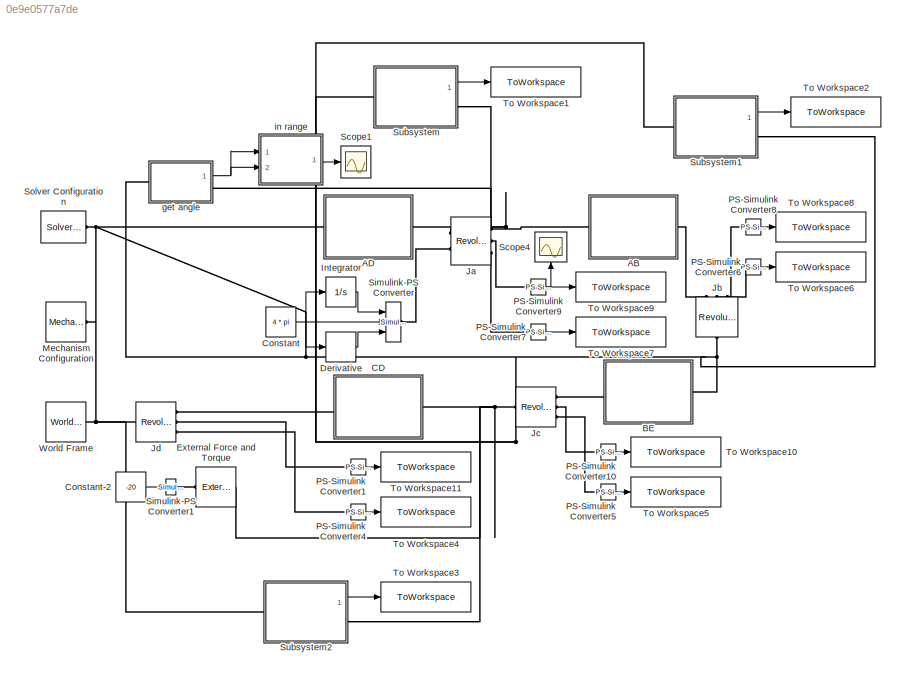
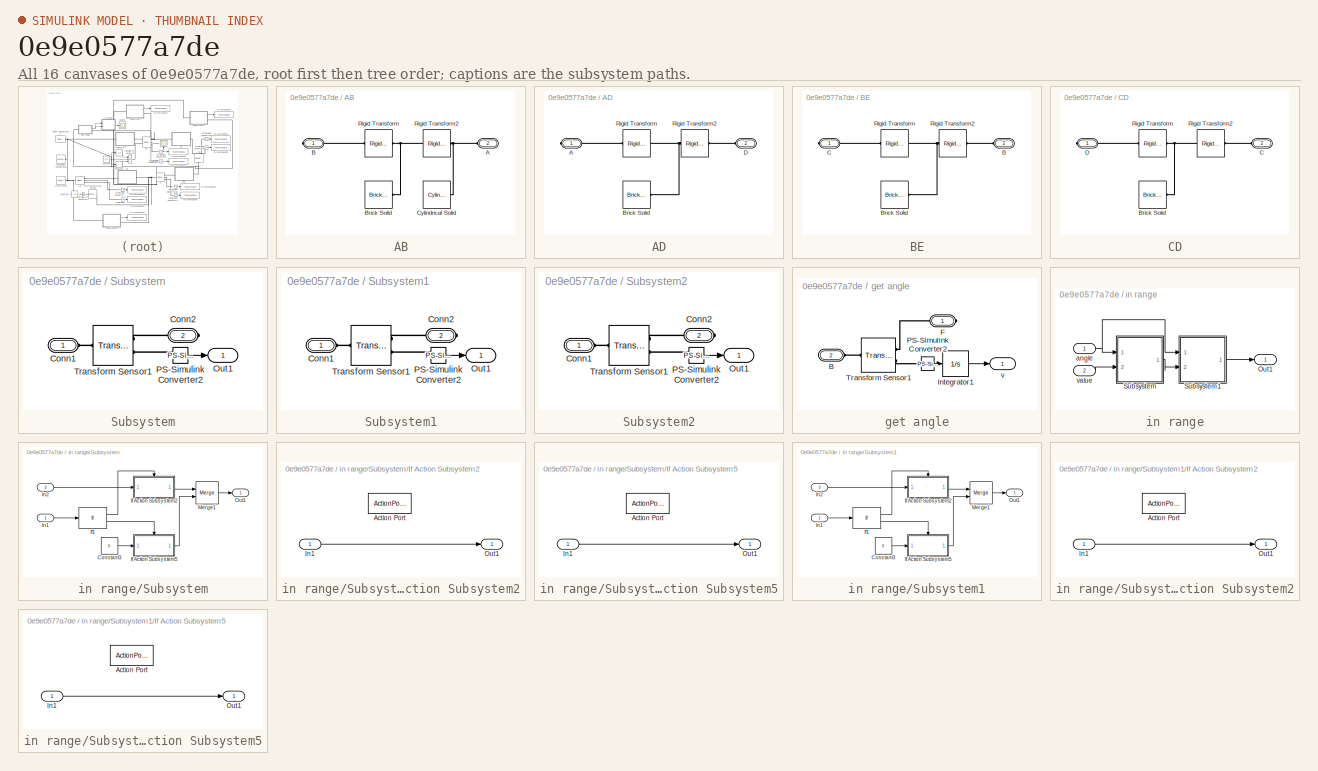
[diagram: thumbnail index - all 16 canvases of the model, root first then tree order]
MODEL slx_0e9e0577a7de
KIND model
CONFIG AbsTol = auto
CONFIG EnableMultiTasking = off
CONFIG FixedStep = auto
CONFIG MaxStep = 1e-3
CONFIG MinStep = auto
CONFIG RelTol = 1e-3
CONFIG SampleTimeConstraint = Unconstrained
CONFIG Solver = VariableStepAuto
CONFIG SolverName = VariableStepAuto
CONFIG StartTime = 0.0
CONFIG StopTime = 0.5
BLOCK [SubSystem] AB
  Ports = [0, 0, 0, 0, 0, 1, 1]
  RequestExecContextInheritance = off
BLOCK [PMIOPort] AB/A
  Port = 2
  Side = Left
BLOCK [PMIOPort] AB/B
  Side = Right
BLOCK [Reference] AB/Brick Solid  REF=sm_lib/Body Elements/Brick Solid
  Ports = [0, 0, 0, 0, 0, 0, 1]
  SourceBlock = sm_lib/Body Elements/Brick Solid
  SourceProductBaseCode = MS
  SourceProductName = Simscape Multibody
  SourceType = Brick Solid
BLOCK [Reference] AB/Cylindrical Solid  REF=sm_lib/Body Elements/Cylindrical Solid
  Commented = on
  Ports = [0, 0, 0, 0, 0, 0, 1]
  SourceBlock = sm_lib/Body Elements/Cylindrical Solid
  SourceProductBaseCode = MS
  SourceProductName = Simscape Multibody
  SourceType = Cylindrical Solid
BLOCK [Reference] AB/Rigid Transform  REF=sm_lib/Frames and
Transforms/Rigid
Transform
  Ports = [0, 0, 0, 0, 0, 1, 1]
  SourceBlock = sm_lib/Frames and\nTransforms/Rigid\nTransform
  SourceProductBaseCode = MS
  SourceProductName = Simscape Multibody
  SourceType = Rigid\nTransform
BLOCK [Reference] AB/Rigid Transform2  REF=sm_lib/Frames and
Transforms/Rigid
Transform
  Ports = [0, 0, 0, 0, 0, 1, 1]
  SourceBlock = sm_lib/Frames and\nTransforms/Rigid\nTransform
  SourceProductBaseCode = MS
  SourceProductName = Simscape Multibody
  SourceType = Rigid\nTransform
BLOCK [SubSystem] AD
  Ports = [0, 0, 0, 0, 0, 1, 1]
  RequestExecContextInheritance = off
BLOCK [PMIOPort] AD/A
  Side = Right
BLOCK [Reference] AD/Brick Solid  REF=sm_lib/Body Elements/Brick Solid
  Ports = [0, 0, 0, 0, 0, 0, 1]
  SourceBlock = sm_lib/Body Elements/Brick Solid
  SourceProductBaseCode = MS
  SourceProductName = Simscape Multibody
  SourceType = Brick Solid
BLOCK [PMIOPort] AD/D
  Port = 2
  Side = Left
BLOCK [Reference] AD/Rigid Transform  REF=sm_lib/Frames and
Transforms/Rigid
Transform
  Ports = [0, 0, 0, 0, 0, 1, 1]
  SourceBlock = sm_lib/Frames and\nTransforms/Rigid\nTransform
  SourceProductBaseCode = MS
  SourceProductName = Simscape Multibody
  SourceType = Rigid\nTransform
BLOCK [Reference] AD/Rigid Transform2  REF=sm_lib/Frames and
Transforms/Rigid
Transform
  Ports = [0, 0, 0, 0, 0, 1, 1]
  SourceBlock = sm_lib/Frames and\nTransforms/Rigid\nTransform
  SourceProductBaseCode = MS
  SourceProductName = Simscape Multibody
  SourceType = Rigid\nTransform
BLOCK [SubSystem] BE
  Ports = [0, 0, 0, 0, 0, 1, 1]
  RequestExecContextInheritance = off
BLOCK [PMIOPort] BE/B
  Port = 2
  Side = Left
BLOCK [Reference] BE/Brick Solid  REF=sm_lib/Body Elements/Brick Solid
  Ports = [0, 0, 0, 0, 0, 0, 1]
  SourceBlock = sm_lib/Body Elements/Brick Solid
  SourceProductBaseCode = MS
  SourceProductName = Simscape Multibody
  SourceType = Brick Solid
BLOCK [PMIOPort] BE/C
  Side = Right
BLOCK [Reference] BE/Rigid Transform  REF=sm_lib/Frames and
Transforms/Rigid
Transform
  Ports = [0, 0, 0, 0, 0, 1, 1]
  SourceBlock = sm_lib/Frames and\nTransforms/Rigid\nTransform
  SourceProductBaseCode = MS
  SourceProductName = Simscape Multibody
  SourceType = Rigid\nTransform
BLOCK [Reference] BE/Rigid Transform2  REF=sm_lib/Frames and
Transforms/Rigid
Transform
  Ports = [0, 0, 0, 0, 0, 1, 1]
  SourceBlock = sm_lib/Frames and\nTransforms/Rigid\nTransform
  SourceProductBaseCode = MS
  SourceProductName = Simscape Multibody
  SourceType = Rigid\nTransform
BLOCK [SubSystem] CD
  Ports = [0, 0, 0, 0, 0, 1, 1]
  RequestExecContextInheritance = off
BLOCK [Reference] CD/Brick Solid  REF=sm_lib/Body Elements/Brick Solid
  Ports = [0, 0, 0, 0, 0, 0, 1]
  SourceBlock = sm_lib/Body Elements/Brick Solid
  SourceProductBaseCode = MS
  SourceProductName = Simscape Multibody
  SourceType = Brick Solid
BLOCK [PMIOPort] CD/C
  Port = 2
  Side = Left
BLOCK [PMIOPort] CD/D
  Side = Right
BLOCK [Reference] CD/Rigid Transform  REF=sm_lib/Frames and
Transforms/Rigid
Transform
  Ports = [0, 0, 0, 0, 0, 1, 1]
  SourceBlock = sm_lib/Frames and\nTransforms/Rigid\nTransform
  SourceProductBaseCode = MS
  SourceProductName = Simscape Multibody
  SourceType = Rigid\nTransform
BLOCK [Reference] CD/Rigid Transform2  REF=sm_lib/Frames and
Transforms/Rigid
Transform
  Ports = [0, 0, 0, 0, 0, 1, 1]
  SourceBlock = sm_lib/Frames and\nTransforms/Rigid\nTransform
  SourceProductBaseCode = MS
  SourceProductName = Simscape Multibody
  SourceType = Rigid\nTransform
BLOCK [Constant] Constant
  Value = 4 * pi
BLOCK [Constant] Constant-2
  Value = -20
BLOCK [Derivative] Derivative
BLOCK [Reference] External Force and Torque  REF=sm_lib/Forces and
Torques/External Force
and Torque
  Ports = [0, 0, 0, 0, 0, 1, 1]
  SourceBlock = sm_lib/Forces and\nTorques/External Force\nand Torque
  SourceProductBaseCode = MS
  SourceProductName = Simscape Multibody
  SourceType = External Force\nand Torque
BLOCK [Integrator] Integrator
  Ports = [1, 1]
BLOCK [Reference] Ja  REF=sm_lib/Joints/Revolute Joint
  Ports = [0, 0, 0, 0, 0, 2, 3]
  SourceBlock = sm_lib/Joints/Revolute Joint
  SourceProductBaseCode = MS
  SourceProductName = Simscape Multibody
  SourceType = Revolute Joint
BLOCK [Reference] Jb  REF=sm_lib/Joints/Revolute Joint
  Ports = [0, 0, 0, 0, 0, 1, 3]
  SourceBlock = sm_lib/Joints/Revolute Joint
  SourceProductBaseCode = MS
  SourceProductName = Simscape Multibody
  SourceType = Revolute Joint
BLOCK [Reference] Jc  REF=sm_lib/Joints/Revolute Joint
  Ports = [0, 0, 0, 0, 0, 1, 3]
  SourceBlock = sm_lib/Joints/Revolute Joint
  SourceProductBaseCode = MS
  SourceProductName = Simscape Multibody
  SourceType = Revolute Joint
BLOCK [Reference] Jd  REF=sm_lib/Joints/Revolute Joint
  Ports = [0, 0, 0, 0, 0, 1, 3]
  SourceBlock = sm_lib/Joints/Revolute Joint
  SourceProductBaseCode = MS
  SourceProductName = Simscape Multibody
  SourceType = Revolute Joint
BLOCK [Reference] Mechanism Configuration  REF=sm_lib/Utilities/Mechanism
Configuration
  Ports = [0, 0, 0, 0, 0, 0, 1]
  SourceBlock = sm_lib/Utilities/Mechanism\nConfiguration
  SourceProductBaseCode = MS
  SourceProductName = Simscape Multibody
  SourceType = Mechanism\nConfiguration
BLOCK [Reference] PS-Simulink Converter1  REF=nesl_utility/PS-Simulink
Converter
  Ports = [0, 1, 0, 0, 0, 1]
  SourceBlock = nesl_utility/PS-Simulink\nConverter
  SourceProductBaseCode = SS
  SourceProductName = Simscape
  SourceType = PS-Simulink\nConverter
BLOCK [Reference] PS-Simulink Converter10  REF=nesl_utility/PS-Simulink
Converter
  Ports = [0, 1, 0, 0, 0, 1]
  SourceBlock = nesl_utility/PS-Simulink\nConverter
  SourceProductBaseCode = SS
  SourceProductName = Simscape
  SourceType = PS-Simulink\nConverter
BLOCK [Reference] PS-Simulink Converter4  REF=nesl_utility/PS-Simulink
Converter
  Ports = [0, 1, 0, 0, 0, 1]
  SourceBlock = nesl_utility/PS-Simulink\nConverter
  SourceProductBaseCode = SS
  SourceProductName = Simscape
  SourceType = PS-Simulink\nConverter
BLOCK [Reference] PS-Simulink Converter5  REF=nesl_utility/PS-Simulink
Converter
  Ports = [0, 1, 0, 0, 0, 1]
  SourceBlock = nesl_utility/PS-Simulink\nConverter
  SourceProductBaseCode = SS
  SourceProductName = Simscape
  SourceType = PS-Simulink\nConverter
BLOCK [Reference] PS-Simulink Converter6  REF=nesl_utility/PS-Simulink
Converter
  Ports = [0, 1, 0, 0, 0, 1]
  SourceBlock = nesl_utility/PS-Simulink\nConverter
  SourceProductBaseCode = SS
  SourceProductName = Simscape
  SourceType = PS-Simulink\nConverter
BLOCK [Reference] PS-Simulink Converter7  REF=nesl_utility/PS-Simulink
Converter
  Ports = [0, 1, 0, 0, 0, 1]
  SourceBlock = nesl_utility/PS-Simulink\nConverter
  SourceProductBaseCode = SS
  SourceProductName = Simscape
  SourceType = PS-Simulink\nConverter
BLOCK [Reference] PS-Simulink Converter8  REF=nesl_utility/PS-Simulink
Converter
  Ports = [0, 1, 0, 0, 0, 1]
  SourceBlock = nesl_utility/PS-Simulink\nConverter
  SourceProductBaseCode = SS
  SourceProductName = Simscape
  SourceType = PS-Simulink\nConverter
BLOCK [Reference] PS-Simulink Converter9  REF=nesl_utility/PS-Simulink
Converter
  Ports = [0, 1, 0, 0, 0, 1]
  SourceBlock = nesl_utility/PS-Simulink\nConverter
  SourceProductBaseCode = SS
  SourceProductName = Simscape
  SourceType = PS-Simulink\nConverter
BLOCK [Scope] Scope1
  Floating = off
  NumInputPorts = 1
  Ports = [1]
  ScopeSpecificationString = Simulink.scopes.TimeScopeBlockCfg('CurrentConfiguration', extmgr.ConfigurationSet(extmgr.Configuration('Core','General UI',true),extmgr.Configuration('Core','Source UI',true),extmgr.Configuration('Sources','WiredSimulink',true,'DataLoggingVariableName','ScopeData1'),extmgr.Configuration('Visuals','Time Domain',true,'SerializedDisplays',{struct('MinYLimReal','-0.5236','MaxYLimReal','4.7124','YLabel...<+1390ch>
BLOCK [Scope] Scope4
  Floating = off
  NumInputPorts = 1
  Ports = [1]
  ScopeSpecificationString = Simulink.scopes.TimeScopeBlockCfg('CurrentConfiguration', extmgr.ConfigurationSet(extmgr.Configuration('Core','General UI',true),extmgr.Configuration('Core','Source UI',true),extmgr.Configuration('Sources','WiredSimulink',true,'DataLoggingVariableName','ScopeData3'),extmgr.Configuration('Visuals','Time Domain',true,'SerializedDisplays',{struct('MinYLimReal','-4534458.02869','MaxYLimReal','2640845....<+1457ch>
BLOCK [Reference] Simulink-PS Converter  REF=nesl_utility/Simulink-PS
Converter
  Ports = [3, 0, 0, 0, 0, 0, 1]
  SourceBlock = nesl_utility/Simulink-PS\nConverter
  SourceProductBaseCode = SS
  SourceProductName = Simscape
  SourceType = Simulink-PS\nConverter
BLOCK [Reference] Simulink-PS Converter1  REF=nesl_utility/Simulink-PS
Converter
  Ports = [1, 0, 0, 0, 0, 0, 1]
  SourceBlock = nesl_utility/Simulink-PS\nConverter
  SourceProductBaseCode = SS
  SourceProductName = Simscape
  SourceType = Simulink-PS\nConverter
BLOCK [Reference] Solver Configuration  REF=nesl_utility/Solver
Configuration
  Ports = [0, 0, 0, 0, 0, 0, 1]
  SourceBlock = nesl_utility/Solver\nConfiguration
  SourceProductBaseCode = SS
  SourceProductName = Simscape
  SourceType = Solver\nConfiguration
BLOCK [SubSystem] Subsystem
  Ports = [0, 1, 0, 0, 0, 1, 1]
  RequestExecContextInheritance = off
BLOCK [PMIOPort] Subsystem/Conn1
  Side = Left
BLOCK [PMIOPort] Subsystem/Conn2
  Port = 2
  Side = Right
BLOCK [Outport] Subsystem/Out1
  IconDisplay = Port number
BLOCK [Reference] Subsystem/PS-Simulink Converter2  REF=nesl_utility/PS-Simulink
Converter
  Ports = [0, 1, 0, 0, 0, 1]
  SourceBlock = nesl_utility/PS-Simulink\nConverter
  SourceProductBaseCode = SS
  SourceProductName = Simscape
  SourceType = PS-Simulink\nConverter
BLOCK [Reference] Subsystem/Transform Sensor1  REF=sm_lib/Frames and
Transforms/Transform
Sensor
  Ports = [0, 0, 0, 0, 0, 1, 2]
  SourceBlock = sm_lib/Frames and\nTransforms/Transform\nSensor
  SourceProductBaseCode = MS
  SourceProductName = Simscape Multibody
  SourceType = Transform\nSensor
BLOCK [SubSystem] Subsystem1
  Ports = [0, 1, 0, 0, 0, 1, 1]
  RequestExecContextInheritance = off
BLOCK [PMIOPort] Subsystem1/Conn1
  Side = Left
BLOCK [PMIOPort] Subsystem1/Conn2
  Port = 2
  Side = Right
BLOCK [Outport] Subsystem1/Out1
  IconDisplay = Port number
BLOCK [Reference] Subsystem1/PS-Simulink Converter2  REF=nesl_utility/PS-Simulink
Converter
  Ports = [0, 1, 0, 0, 0, 1]
  SourceBlock = nesl_utility/PS-Simulink\nConverter
  SourceProductBaseCode = SS
  SourceProductName = Simscape
  SourceType = PS-Simulink\nConverter
BLOCK [Reference] Subsystem1/Transform Sensor1  REF=sm_lib/Frames and
Transforms/Transform
Sensor
  Ports = [0, 0, 0, 0, 0, 1, 2]
  SourceBlock = sm_lib/Frames and\nTransforms/Transform\nSensor
  SourceProductBaseCode = MS
  SourceProductName = Simscape Multibody
  SourceType = Transform\nSensor
BLOCK [SubSystem] Subsystem2
  Ports = [0, 1, 0, 0, 0, 1, 1]
  RequestExecContextInheritance = off
BLOCK [PMIOPort] Subsystem2/Conn1
  Side = Left
BLOCK [PMIOPort] Subsystem2/Conn2
  Port = 2
  Side = Right
BLOCK [Outport] Subsystem2/Out1
  IconDisplay = Port number
BLOCK [Reference] Subsystem2/PS-Simulink Converter2  REF=nesl_utility/PS-Simulink
Converter
  Ports = [0, 1, 0, 0, 0, 1]
  SourceBlock = nesl_utility/PS-Simulink\nConverter
  SourceProductBaseCode = SS
  SourceProductName = Simscape
  SourceType = PS-Simulink\nConverter
BLOCK [Reference] Subsystem2/Transform Sensor1  REF=sm_lib/Frames and
Transforms/Transform
Sensor
  Ports = [0, 0, 0, 0, 0, 1, 2]
  SourceBlock = sm_lib/Frames and\nTransforms/Transform\nSensor
  SourceProductBaseCode = MS
  SourceProductName = Simscape Multibody
  SourceType = Transform\nSensor
BLOCK [ToWorkspace] To Workspace1
  FixptAsFi = on
  MaxDataPoints = inf
  Ports = [1]
  SampleTime = -1
  SaveFormat = Timeseries
  VariableName = l2_w
BLOCK [ToWorkspace] To Workspace10
  FixptAsFi = on
  MaxDataPoints = inf
  Ports = [1]
  SampleTime = -1
  SaveFormat = Timeseries
  VariableName = Jc_t
BLOCK [ToWorkspace] To Workspace11
  FixptAsFi = on
  MaxDataPoints = inf
  Ports = [1]
  SampleTime = -1
  SaveFormat = Timeseries
  VariableName = Jd_t
BLOCK [ToWorkspace] To Workspace2
  FixptAsFi = on
  MaxDataPoints = inf
  Ports = [1]
  SampleTime = -1
  SaveFormat = Timeseries
  VariableName = l3_w
BLOCK [ToWorkspace] To Workspace3
  FixptAsFi = on
  MaxDataPoints = inf
  Ports = [1]
  SampleTime = -1
  SaveFormat = Timeseries
  VariableName = l4_w
BLOCK [ToWorkspace] To Workspace4
  FixptAsFi = on
  MaxDataPoints = inf
  Ports = [1]
  SampleTime = -1
  SaveFormat = Timeseries
  VariableName = Jd_f
BLOCK [ToWorkspace] To Workspace5
  FixptAsFi = on
  MaxDataPoints = inf
  Ports = [1]
  SampleTime = -1
  SaveFormat = Timeseries
  VariableName = Jc_f
BLOCK [ToWorkspace] To Workspace6
  FixptAsFi = on
  MaxDataPoints = inf
  Ports = [1]
  SampleTime = -1
  SaveFormat = Timeseries
  VariableName = Jb_f
BLOCK [ToWorkspace] To Workspace7
  FixptAsFi = on
  MaxDataPoints = inf
  Ports = [1]
  SampleTime = -1
  SaveFormat = Timeseries
  VariableName = Ja_f
BLOCK [ToWorkspace] To Workspace8
  FixptAsFi = on
  MaxDataPoints = inf
  Ports = [1]
  SampleTime = -1
  SaveFormat = Timeseries
  VariableName = Jb_t
BLOCK [ToWorkspace] To Workspace9
  FixptAsFi = on
  MaxDataPoints = inf
  Ports = [1]
  SampleTime = -1
  SaveFormat = Timeseries
  VariableName = Ja_t
BLOCK [Reference] World Frame  REF=sm_lib/Frames and
Transforms/World Frame
  Ports = [0, 0, 0, 0, 0, 0, 1]
  SourceBlock = sm_lib/Frames and\nTransforms/World Frame
  SourceProductBaseCode = MS
  SourceProductName = Simscape Multibody
  SourceType = World Frame
BLOCK [SubSystem] get angle
  Ports = [0, 1, 0, 0, 0, 1, 1]
  RequestExecContextInheritance = off
BLOCK [PMIOPort] get angle/B
  Port = 2
  Side = Left
BLOCK [PMIOPort] get angle/F
  Side = Right
BLOCK [Integrator] get angle/Integrator1
  Ports = [1, 1]
BLOCK [Reference] get angle/PS-Simulink Converter2  REF=nesl_utility/PS-Simulink
Converter
  Ports = [0, 1, 0, 0, 0, 1]
  SourceBlock = nesl_utility/PS-Simulink\nConverter
  SourceProductBaseCode = SS
  SourceProductName = Simscape
  SourceType = PS-Simulink\nConverter
BLOCK [Reference] get angle/Transform Sensor1  REF=sm_lib/Frames and
Transforms/Transform
Sensor
  Ports = [0, 0, 0, 0, 0, 1, 2]
  SourceBlock = sm_lib/Frames and\nTransforms/Transform\nSensor
  SourceProductBaseCode = MS
  SourceProductName = Simscape Multibody
  SourceType = Transform\nSensor
BLOCK [Outport] get angle/v
  IconDisplay = Port number
BLOCK [SubSystem] in range
  Ports = [2, 1]
  RequestExecContextInheritance = off
BLOCK [Outport] in range/Out1
  IconDisplay = Port number
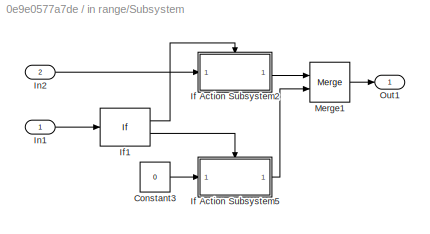
BLOCK [SubSystem] in range/Subsystem
  Ports = [2, 1]
  RequestExecContextInheritance = off
BLOCK [Constant] in range/Subsystem/Constant3
  Value = 0
BLOCK [SubSystem] in range/Subsystem/If Action Subsystem2
  Ports = [1, 1, 0, 0, 0, 0, 0, 1]
  RequestExecContextInheritance = off
  TreatAsAtomicUnit = on
BLOCK [ActionPort] in range/Subsystem/If Action Subsystem2/Action Port
  ActionPortLabel = if(2.6180 <= u1)
BLOCK [Inport] in range/Subsystem/If Action Subsystem2/In1
  IconDisplay = Port number
BLOCK [Outport] in range/Subsystem/If Action Subsystem2/Out1
  IconDisplay = Port number
BLOCK [SubSystem] in range/Subsystem/If Action Subsystem5
  Ports = [1, 1, 0, 0, 0, 0, 0, 1]
  RequestExecContextInheritance = off
  TreatAsAtomicUnit = on
BLOCK [ActionPort] in range/Subsystem/If Action Subsystem5/Action Port
  ActionPortLabel = else
BLOCK [Inport] in range/Subsystem/If Action Subsystem5/In1
  IconDisplay = Port number
BLOCK [Outport] in range/Subsystem/If Action Subsystem5/Out1
  IconDisplay = Port number
BLOCK [If] in range/Subsystem/If1
  IfExpression = 2.6180 <= u1
  Ports = [1, 2]
BLOCK [Inport] in range/Subsystem/In1
  IconDisplay = Port number
BLOCK [Inport] in range/Subsystem/In2
  IconDisplay = Port number
  Port = 2
BLOCK [Merge] in range/Subsystem/Merge1
  Ports = [2, 1]
BLOCK [Outport] in range/Subsystem/Out1
  IconDisplay = Port number
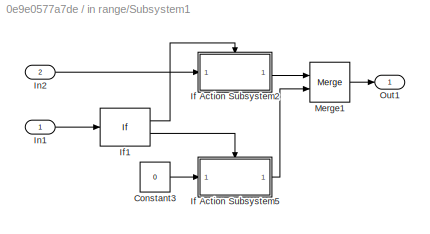
BLOCK [SubSystem] in range/Subsystem1
  Ports = [2, 1]
  RequestExecContextInheritance = off
BLOCK [Constant] in range/Subsystem1/Constant3
  Value = 0
BLOCK [SubSystem] in range/Subsystem1/If Action Subsystem2
  Ports = [1, 1, 0, 0, 0, 0, 0, 1]
  RequestExecContextInheritance = off
  TreatAsAtomicUnit = on
BLOCK [ActionPort] in range/Subsystem1/If Action Subsystem2/Action Port
  ActionPortLabel = if(u1 <= 4.1888)
BLOCK [Inport] in range/Subsystem1/If Action Subsystem2/In1
  IconDisplay = Port number
BLOCK [Outport] in range/Subsystem1/If Action Subsystem2/Out1
  IconDisplay = Port number
BLOCK [SubSystem] in range/Subsystem1/If Action Subsystem5
  Ports = [1, 1, 0, 0, 0, 0, 0, 1]
  RequestExecContextInheritance = off
  TreatAsAtomicUnit = on
BLOCK [ActionPort] in range/Subsystem1/If Action Subsystem5/Action Port
  ActionPortLabel = else
BLOCK [Inport] in range/Subsystem1/If Action Subsystem5/In1
  IconDisplay = Port number
BLOCK [Outport] in range/Subsystem1/If Action Subsystem5/Out1
  IconDisplay = Port number
BLOCK [If] in range/Subsystem1/If1
  IfExpression = u1 <= 4.1888
  Ports = [1, 2]
BLOCK [Inport] in range/Subsystem1/In1
  IconDisplay = Port number
BLOCK [Inport] in range/Subsystem1/In2
  IconDisplay = Port number
  Port = 2
BLOCK [Merge] in range/Subsystem1/Merge1
  Ports = [2, 1]
BLOCK [Outport] in range/Subsystem1/Out1
  IconDisplay = Port number
BLOCK [Inport] in range/angle
  IconDisplay = Port number
BLOCK [Inport] in range/value
  IconDisplay = Port number
  Port = 2
LINE Constant-2:1 -> Simulink-PS Converter1:1
NET Constant:1 -> Derivative:1, Integrator:1, Simulink-PS Converter:2
LINE Derivative:1 -> Simulink-PS Converter:3
LINE Integrator:1 -> Simulink-PS Converter:1
LINE PS-Simulink Converter10:1 -> To Workspace10:1
LINE PS-Simulink Converter1:1 -> To Workspace11:1
LINE PS-Simulink Converter4:1 -> To Workspace4:1
LINE PS-Simulink Converter5:1 -> To Workspace5:1
LINE PS-Simulink Converter6:1 -> To Workspace6:1
LINE PS-Simulink Converter7:1 -> To Workspace7:1
LINE PS-Simulink Converter8:1 -> To Workspace8:1
NET PS-Simulink Converter9:1 -> Scope4:1, To Workspace9:1
LINE Subsystem/PS-Simulink Converter2:1 -> Subsystem/Out1:1
LINE Subsystem1/PS-Simulink Converter2:1 -> Subsystem1/Out1:1
LINE Subsystem1:1 -> To Workspace2:1
LINE Subsystem2/PS-Simulink Converter2:1 -> Subsystem2/Out1:1
LINE Subsystem2:1 -> To Workspace3:1
LINE Subsystem:1 -> To Workspace1:1
LINE get angle/Integrator1:1 -> get angle/v:1
LINE get angle/PS-Simulink Converter2:1 -> get angle/Integrator1:1
NET get angle:1 -> in range:1, in range:2
LINE in range/Subsystem/Constant3:1 -> in range/Subsystem/If Action Subsystem5:1
LINE in range/Subsystem/If Action Subsystem2/In1:1 -> in range/Subsystem/If Action Subsystem2/Out1:1
LINE in range/Subsystem/If Action Subsystem2:1 -> in range/Subsystem/Merge1:1
LINE in range/Subsystem/If Action Subsystem5/In1:1 -> in range/Subsystem/If Action Subsystem5/Out1:1
LINE in range/Subsystem/If Action Subsystem5:1 -> in range/Subsystem/Merge1:2
LINE in range/Subsystem/If1:1 -> in range/Subsystem/If Action Subsystem2:ifaction
LINE in range/Subsystem/If1:2 -> in range/Subsystem/If Action Subsystem5:ifaction
LINE in range/Subsystem/In1:1 -> in range/Subsystem/If1:1
LINE in range/Subsystem/In2:1 -> in range/Subsystem/If Action Subsystem2:1
LINE in range/Subsystem/Merge1:1 -> in range/Subsystem/Out1:1
LINE in range/Subsystem1/Constant3:1 -> in range/Subsystem1/If Action Subsystem5:1
LINE in range/Subsystem1/If Action Subsystem2/In1:1 -> in range/Subsystem1/If Action Subsystem2/Out1:1
LINE in range/Subsystem1/If Action Subsystem2:1 -> in range/Subsystem1/Merge1:1
LINE in range/Subsystem1/If Action Subsystem5/In1:1 -> in range/Subsystem1/If Action Subsystem5/Out1:1
LINE in range/Subsystem1/If Action Subsystem5:1 -> in range/Subsystem1/Merge1:2
LINE in range/Subsystem1/If1:1 -> in range/Subsystem1/If Action Subsystem2:ifaction
LINE in range/Subsystem1/If1:2 -> in range/Subsystem1/If Action Subsystem5:ifaction
LINE in range/Subsystem1/In1:1 -> in range/Subsystem1/If1:1
LINE in range/Subsystem1/In2:1 -> in range/Subsystem1/If Action Subsystem2:1
LINE in range/Subsystem1/Merge1:1 -> in range/Subsystem1/Out1:1
LINE in range/Subsystem1:1 -> in range/Out1:1
LINE in range/Subsystem:1 -> in range/Subsystem1:2
NET in range/angle:1 -> in range/Subsystem1:1, in range/Subsystem:1
LINE in range/value:1 -> in range/Subsystem:2
LINE in range:1 -> Scope1:1
PNET net1: AB/A:RConn1 -- AB/Cylindrical Solid:RConn1 -- AB/Rigid Transform2:LConn1
PLINE AB/B:RConn1 -- AB/Rigid Transform:RConn1
PNET net2: AB/Brick Solid:RConn1 -- AB/Rigid Transform2:RConn1 -- AB/Rigid Transform:LConn1
PNET net3: AB:LConn1 -- Ja:RConn1 -- Subsystem:RConn1 -- get angle:RConn1
PLINE AB:RConn1 -- Jb:RConn1
PLINE AD/A:RConn1 -- AD/Rigid Transform:RConn1
PNET net4: AD/Brick Solid:RConn1 -- AD/Rigid Transform2:RConn1 -- AD/Rigid Transform:LConn1
PLINE AD/D:RConn1 -- AD/Rigid Transform2:LConn1
PNET net5: AD:LConn1 -- Jd:LConn1 -- Mechanism Configuration:RConn1 -- Solver Configuration:RConn1 -- Subsystem1:LConn1 -- Subsystem2:LConn1 -- Subsystem:LConn1 -- World Frame:RConn1 -- get angle:LConn1
PLINE AD:RConn1 -- Ja:LConn1
PLINE BE/B:RConn1 -- BE/Rigid Transform2:LConn1
PNET net6: BE/Brick Solid:RConn1 -- BE/Rigid Transform2:RConn1 -- BE/Rigid Transform:LConn1
PLINE BE/C:RConn1 -- BE/Rigid Transform:RConn1
PNET net7: BE:LConn1 -- Jb:LConn1 -- Subsystem1:RConn1
PLINE BE:RConn1 -- Jc:RConn1
PNET net8: CD/Brick Solid:RConn1 -- CD/Rigid Transform2:RConn1 -- CD/Rigid Transform:LConn1
PLINE CD/C:RConn1 -- CD/Rigid Transform2:LConn1
PLINE CD/D:RConn1 -- CD/Rigid Transform:RConn1
PNET net9: CD:LConn1 -- External Force and Torque:RConn1 -- Jc:LConn1 -- Subsystem2:RConn1
PLINE CD:RConn1 -- Jd:RConn1
PLINE External Force and Torque:LConn1 -- Simulink-PS Converter1:RConn1
PLINE Ja:LConn2 -- Simulink-PS Converter:RConn1
PLINE Ja:RConn2 -- PS-Simulink Converter9:LConn1
PLINE Ja:RConn3 -- PS-Simulink Converter7:LConn1
PLINE Jb:RConn2 -- PS-Simulink Converter8:LConn1
PLINE Jb:RConn3 -- PS-Simulink Converter6:LConn1
PLINE Jc:RConn2 -- PS-Simulink Converter10:LConn1
PLINE Jc:RConn3 -- PS-Simulink Converter5:LConn1
PLINE Jd:RConn2 -- PS-Simulink Converter1:LConn1
PLINE Jd:RConn3 -- PS-Simulink Converter4:LConn1
PLINE Subsystem/Conn1:RConn1 -- Subsystem/Transform Sensor1:LConn1
PLINE Subsystem/Conn2:RConn1 -- Subsystem/Transform Sensor1:RConn1
PLINE Subsystem/PS-Simulink Converter2:LConn1 -- Subsystem/Transform Sensor1:RConn2
PLINE Subsystem1/Conn1:RConn1 -- Subsystem1/Transform Sensor1:LConn1
PLINE Subsystem1/Conn2:RConn1 -- Subsystem1/Transform Sensor1:RConn1
PLINE Subsystem1/PS-Simulink Converter2:LConn1 -- Subsystem1/Transform Sensor1:RConn2
PLINE Subsystem2/Conn1:RConn1 -- Subsystem2/Transform Sensor1:LConn1
PLINE Subsystem2/Conn2:RConn1 -- Subsystem2/Transform Sensor1:RConn1
PLINE Subsystem2/PS-Simulink Converter2:LConn1 -- Subsystem2/Transform Sensor1:RConn2
PLINE get angle/B:RConn1 -- get angle/Transform Sensor1:LConn1
PLINE get angle/F:RConn1 -- get angle/Transform Sensor1:RConn1
PLINE get angle/PS-Simulink Converter2:LConn1 -- get angle/Transform Sensor1:RConn2
note: NET lines group one-source signal fan-out (src -> all destinations, sorted); 1:1 wires keep LINE; PNET lines group multi-terminal physical nets as a canonical sorted terminal list (undirected conserving connections); 2-terminal nets keep the pairwise PLINE form
